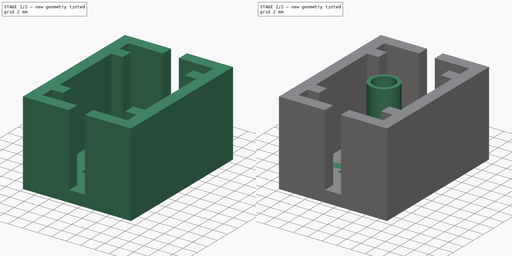
[diagram: build sequence overview — one tinted view per stage of 2, left to right]
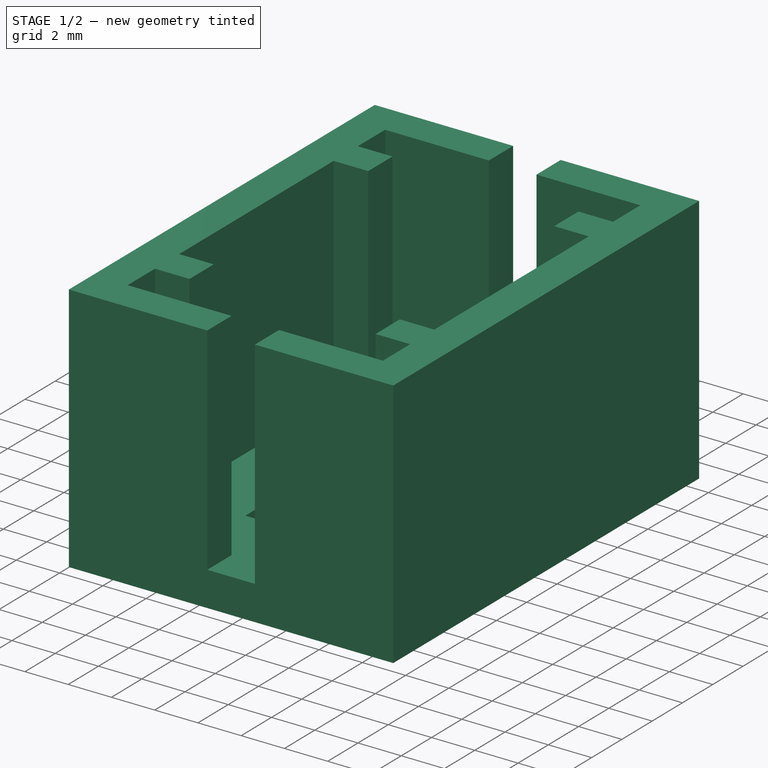
[diagram: stage 1 of 2 — iso view after this stage's code; geometry added in this stage tinted green]
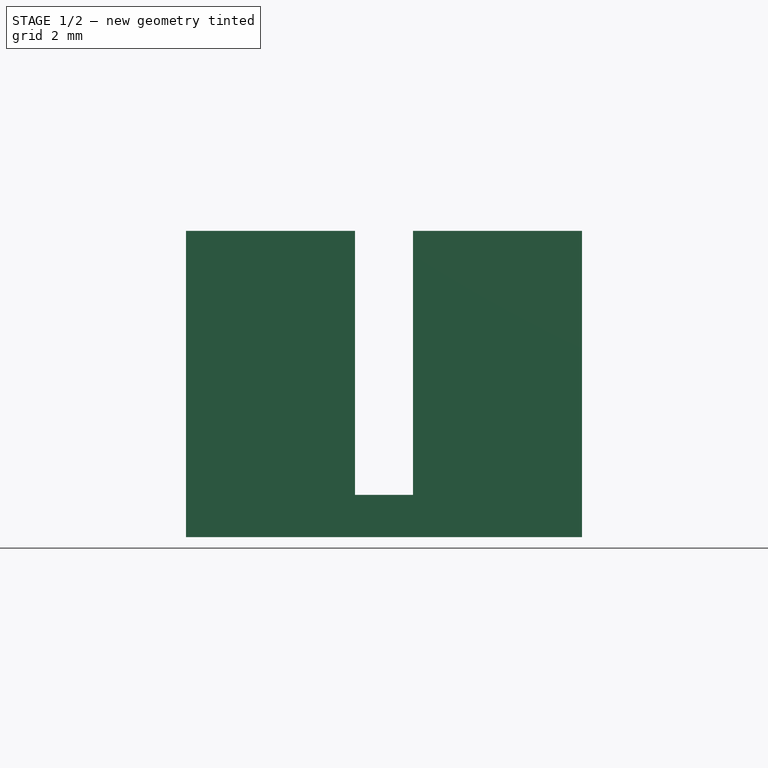
[diagram: stage 1 of 2 — front view after this stage's code; geometry added in this stage tinted green]
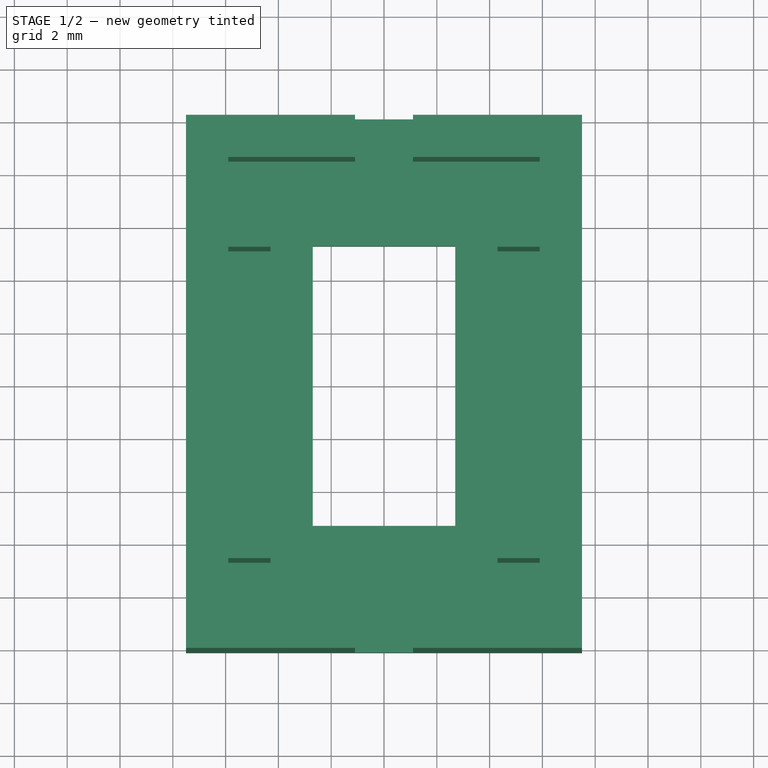
[diagram: stage 1 of 2 — top view after this stage's code; geometry added in this stage tinted green]
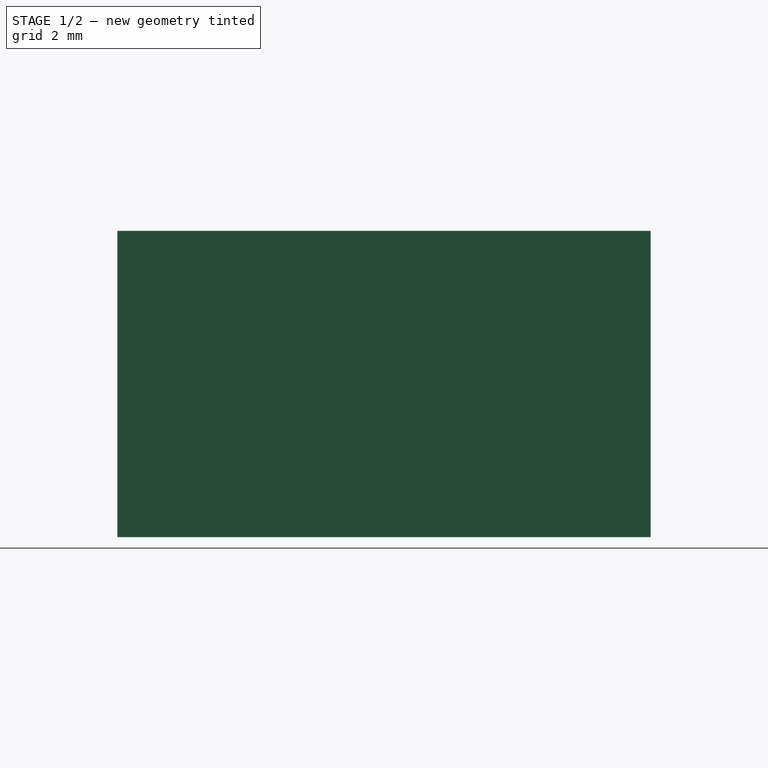
[diagram: stage 1 of 2 — right view after this stage's code; geometry added in this stage tinted green]
FCSTD DOCUMENT  (FreeCAD 1.0R39319 (Git))
Label: tube_test
License: All rights reserved
LicenseURL: http://en.wikipedia.org/wiki/All_rights_reserved
objects: Sketcher::SketchObject×4, PartDesign::Pad×4, PartDesign::Body×2
note: 22 computed .brp shape members not serialized (recipe doc carries the construction recipe); baked Part::Feature solids carry a one-line shape summary decoded from their .brp

FEATURE [Sketcher::SketchObject] Sketch
  ArcFitTolerance = 1e-06
  AttachmentSupport = -> [XY_Plane]
  FullyConstrained = true
  MakeInternals = false
  MapMode = 5
  sketch-geometry (10):
    g0: LineSegment StartX=-7.5 StartY=-10.1 StartZ=0 EndX=7.5 EndY=-10.1 EndZ=0
    g1: LineSegment StartX=7.5 StartY=-10.1 StartZ=0 EndX=7.5 EndY=10.1 EndZ=0
    g2: LineSegment StartX=7.5 StartY=10.1 StartZ=0 EndX=-7.5 EndY=10.1 EndZ=0
    g3: LineSegment StartX=-7.5 StartY=10.1 StartZ=0 EndX=-7.5 EndY=-10.1 EndZ=0
    g4: GeomPoint [constr] X=0 Y=0 Z=0
    g5: LineSegment StartX=-2.7 StartY=5.3 StartZ=0 EndX=-2.7 EndY=-5.3 EndZ=0
    g6: LineSegment StartX=-2.7 StartY=-5.3 StartZ=0 EndX=2.7 EndY=-5.3 EndZ=0
    g7: LineSegment StartX=2.7 StartY=-5.3 StartZ=0 EndX=2.7 EndY=5.3 EndZ=0
    g8: LineSegment StartX=2.7 StartY=5.3 StartZ=0 EndX=-2.7 EndY=5.3 EndZ=0
    g9: GeomPoint [constr] X=0 Y=0 Z=0
  constraints (24):
    c: Coincident(g0,g1)
    c: Coincident(g1,g2)
    c: Coincident(g2,g3)
    c: Coincident(g3,g0)
    c: Horizontal(g0)
    c: Horizontal(g2)
    c: Vertical(g1)
    c: Vertical(g3)
    c: Symmetric(g2,g0,g4)
    c: Distance(g1,g3) = 15
    c: Distance(g0,g2) = 20.2
    c: Coincident(g4,g-1)
    c: Coincident(g5,g6)
    c: Coincident(g6,g7)
    c: Coincident(g7,g8)
    c: Coincident(g8,g5)
    c: Vertical(g5)
    c: Vertical(g7)
    c: Horizontal(g6)
    c: Horizontal(g8)
    c: Symmetric(g7,g5,g9)
    c: Coincident(g9,g4)
    c: Distance(g8,g2) = 4.8
    c: Distance(g1,g7) = 4.8
FEATURE [PartDesign::Pad] Pad
  Direction = (0,0,1)
  Length = 1.6
  Length2 = 10
  Profile = -> Sketch
  ReferenceAxis = -> Sketch [N_Axis]
  Refine = true
  Suppressed = false
  Type = 0
FEATURE [PartDesign::Body] Body001
  AllowCompound = false
  Group = -> [Sketch002,Pad002,Sketch003,Pad003]
  Origin = -> Origin001
  Tip = -> Pad003
FEATURE [Sketcher::SketchObject] Sketch004
  ArcFitTolerance = 1e-06
  AttachmentSupport = -> [Pad]
  ExternalGeometry = -> [Pad]
  FullyConstrained = true
  MakeInternals = false
  MapMode = 5
  Placement = pos=(0,0,1.6) rot=(0,0,1;0rad)
  sketch-geometry (40):
    g0: LineSegment StartX=-7.5 StartY=10.1 StartZ=0 EndX=-7.5 EndY=-10.1 EndZ=0
    g1: LineSegment StartX=-7.5 StartY=-10.1 StartZ=0 EndX=-5.9 EndY=-10.1 EndZ=0
    g2: LineSegment StartX=-5.9 StartY=-10.1 StartZ=0 EndX=-5.9 EndY=10.1 EndZ=0
    g3: LineSegment StartX=-5.9 StartY=10.1 StartZ=0 EndX=-7.5 EndY=10.1 EndZ=0
    g4: LineSegment StartX=7.5 StartY=10.1 StartZ=0 EndX=5.9 EndY=10.1 EndZ=0
    g5: LineSegment StartX=5.9 StartY=10.1 StartZ=0 EndX=5.9 EndY=-10.1 EndZ=0
    g6: LineSegment StartX=5.9 StartY=-10.1 StartZ=0 EndX=7.5 EndY=-10.1 EndZ=0
    g7: LineSegment StartX=7.5 StartY=-10.1 StartZ=0 EndX=7.5 EndY=10.1 EndZ=0
    g8: LineSegment StartX=-5.9 StartY=-10.1 StartZ=0 EndX=-1.1 EndY=-10.1 EndZ=0
    g9: LineSegment StartX=-1.1 StartY=-10.1 StartZ=0 EndX=-1.1 EndY=-8.5 EndZ=0
    g10: LineSegment StartX=-1.1 StartY=-8.5 StartZ=0 EndX=-5.9 EndY=-8.5 EndZ=0
    g11: LineSegment StartX=-5.9 StartY=-8.5 StartZ=0 EndX=-5.9 EndY=-10.1 EndZ=0
    g12: LineSegment StartX=5.9 StartY=-10.1 StartZ=0 EndX=5.9 EndY=-8.5 EndZ=0
    g13: LineSegment StartX=5.9 StartY=-8.5 StartZ=0 EndX=1.1 EndY=-8.5 EndZ=0
    g14: LineSegment StartX=1.1 StartY=-8.5 StartZ=0 EndX=1.1 EndY=-10.1 EndZ=0
    g15: LineSegment StartX=1.1 StartY=-10.1 StartZ=0 EndX=5.9 EndY=-10.1 EndZ=0
    g16: LineSegment StartX=-5.9 StartY=10.1 StartZ=0 EndX=-5.9 EndY=8.5 EndZ=0
    g17: LineSegment StartX=-5.9 StartY=8.5 StartZ=0 EndX=-1.1 EndY=8.5 EndZ=0
    g18: LineSegment StartX=-1.1 StartY=8.5 StartZ=0 EndX=-1.1 EndY=10.1 EndZ=0
    g19: LineSegment StartX=-1.1 StartY=10.1 StartZ=0 EndX=-5.9 EndY=10.1 EndZ=0
    g20: LineSegment StartX=5.9 StartY=10.1 StartZ=0 EndX=1.1 EndY=10.1 EndZ=0
    g21: LineSegment StartX=1.1 StartY=10.1 StartZ=0 EndX=1.1 EndY=8.5 EndZ=0
    g22: LineSegment StartX=1.1 StartY=8.5 StartZ=0 EndX=5.9 EndY=8.5 EndZ=0
    g23: LineSegment StartX=5.9 StartY=8.5 StartZ=0 EndX=5.9 EndY=10.1 EndZ=0
    g24: LineSegment StartX=-5.9 StartY=5.1 StartZ=0 EndX=-4.3 EndY=5.1 EndZ=0
    g25: LineSegment StartX=-4.3 StartY=5.1 StartZ=0 EndX=-4.3 EndY=6.7 EndZ=0
    g26: LineSegment StartX=-4.3 StartY=6.7 StartZ=0 EndX=-5.9 EndY=6.7 EndZ=0
    g27: LineSegment StartX=-5.9 StartY=6.7 StartZ=0 EndX=-5.9 EndY=5.1 EndZ=0
    g28: LineSegment StartX=5.9 StartY=5.1 StartZ=0 EndX=5.9 EndY=6.7 EndZ=0
    g29: LineSegment StartX=5.9 StartY=6.7 StartZ=0 EndX=4.3 EndY=6.7 EndZ=0
    g30: LineSegment StartX=4.3 StartY=6.7 StartZ=0 EndX=4.3 EndY=5.1 EndZ=0
    g31: LineSegment StartX=4.3 StartY=5.1 StartZ=0 EndX=5.9 EndY=5.1 EndZ=0
    g32: LineSegment StartX=-5.9 StartY=-5.1 StartZ=0 EndX=-5.9 EndY=-6.7 EndZ=0
    g33: LineSegment StartX=-5.9 StartY=-6.7 StartZ=0 EndX=-4.3 EndY=-6.7 EndZ=0
    g34: LineSegment StartX=-4.3 StartY=-6.7 StartZ=0 EndX=-4.3 EndY=-5.1 EndZ=0
    g35: LineSegment StartX=-4.3 StartY=-5.1 StartZ=0 EndX=-5.9 EndY=-5.1 EndZ=0
    g36: LineSegment StartX=5.9 StartY=-5.1 StartZ=0 EndX=4.3 EndY=-5.1 EndZ=0
    g37: LineSegment StartX=4.3 StartY=-5.1 StartZ=0 EndX=4.3 EndY=-6.7 EndZ=0
    g38: LineSegment StartX=4.3 StartY=-6.7 StartZ=0 EndX=5.9 EndY=-6.7 EndZ=0
    g39: LineSegment StartX=5.9 StartY=-6.7 StartZ=0 EndX=5.9 EndY=-5.1 EndZ=0
  constraints (114):
    c: Coincident(g0,g1)
    c: Coincident(g1,g2)
    c: Coincident(g2,g3)
    c: Coincident(g3,g0)
    c: Vertical(g0)
    c: Vertical(g2)
    c: Horizontal(g1)
    c: Horizontal(g3)
    c: Distance(g0,g2) = 1.6
    c: Coincident(g0,g-5)
    c: PointOnObject(g1,g-6)
    c: Coincident(g4,g5)
    c: Coincident(g5,g6)
    c: Coincident(g6,g7)
    c: Coincident(g7,g4)
    c: Horizontal(g4)
    c: Horizontal(g6)
    c: Vertical(g5)
    c: Vertical(g7)
    c: Distance(g5,g7) = 1.6
    c: Coincident(g4,g-4)
    c: PointOnObject(g5,g-6)
    c: Coincident(g8,g9)
    c: Coincident(g9,g10)
    c: Coincident(g10,g11)
    c: Coincident(g11,g8)
    c: Horizontal(g8)
    c: Horizontal(g10)
    c: Vertical(g9)
    c: Vertical(g11)
    c: Distance(g9,g11) = 4.8
    c: Distance(g8,g10) = 1.6
    c: Coincident(g8,g1)
    c: Coincident(g12,g13)
    c: Coincident(g13,g14)
    c: Coincident(g14,g15)
    c: Coincident(g15,g12)
    c: Vertical(g12)
    c: Vertical(g14)
    c: Horizontal(g13)
    c: Horizontal(g15)
    c: Distance(g12,g14) = 4.8
    c: Distance(g13,g15) = 1.6
    c: Coincident(g12,g5)
    c: Coincident(g16,g17)
    c: Coincident(g17,g18)
    c: Coincident(g18,g19)
    c: Coincident(g19,g16)
    c: Vertical(g16)
    c: Vertical(g18)
    c: Horizontal(g17)
    c: Horizontal(g19)
    c: Distance(g16,g18) = 4.8
    c: Distance(g17,g19) = 1.6
    c: Coincident(g16,g2)
    c: Coincident(g20,g21)
    c: Coincident(g21,g22)
    c: Coincident(g22,g23)
    c: Coincident(g23,g20)
    c: Horizontal(g20)
    c: Horizontal(g22)
    c: Vertical(g21)
    c: Vertical(g23)
    c: Distance(g21,g23) = 4.8
    c: Distance(g20,g22) = 1.6
    c: Coincident(g20,g4)
    c: Coincident(g24,g25)
    c: Coincident(g25,g26)
    c: Coincident(g26,g27)
    c: Coincident(g27,g24)
    c: Horizontal(g24)
    c: Horizontal(g26)
    c: Vertical(g25)
    c: Vertical(g27)
    c: Distance(g25,g27) = 1.6
    c: Distance(g24,g26) = 1.6
    c: PointOnObject(g24,g2)
    c: Coincident(g28,g29)
    c: Coincident(g29,g30)
    c: Coincident(g30,g31)
    c: Coincident(g31,g28)
    c: Vertical(g28)
    c: Vertical(g30)
    c: Horizontal(g29)
    c: Horizontal(g31)
    c: Distance(g28,g30) = 1.6
    c: Distance(g29,g31) = 1.6
    c: PointOnObject(g28,g5)
    c: Coincident(g32,g33)
    c: Coincident(g33,g34)
    c: Coincident(g34,g35)
    c: Coincident(g35,g32)
    c: Vertical(g32)
    c: Vertical(g34)
    c: Horizontal(g33)
    c: Horizontal(g35)
    c: Distance(g32,g34) = 1.6
    c: Distance(g33,g35) = 1.6
    c: PointOnObject(g32,g2)
    c: Coincident(g36,g37)
    c: Coincident(g37,g38)
    c: Coincident(g38,g39)
    c: Coincident(g39,g36)
    c: Horizontal(g36)
    c: Horizontal(g38)
    c: Vertical(g37)
    c: Vertical(g39)
    c: Distance(g37,g39) = 1.6
    c: Distance(g36,g38) = 1.6
    c: PointOnObject(g36,g5)
    c: Distance(g33,g10) = 1.8
    c: Distance(g13,g38) = 1.8
    c: Distance(g26,g17) = 1.8
    c: Distance(g29,g22) = 1.8
FEATURE [PartDesign::Pad] Pad004
  BaseFeature = -> Pad
  Direction = (0,0,1)
  Length = 10
  Length2 = 10
  Profile = -> Sketch004
  ReferenceAxis = -> Sketch004 [N_Axis]
  Refine = true
  Suppressed = false
  Type = 0
FEATURE [PartDesign::Body] Body
  AllowCompound = false
  Group = -> [Sketch,Pad,Sketch004,Pad004]
  Origin = -> Origin
  Tip = -> Pad004
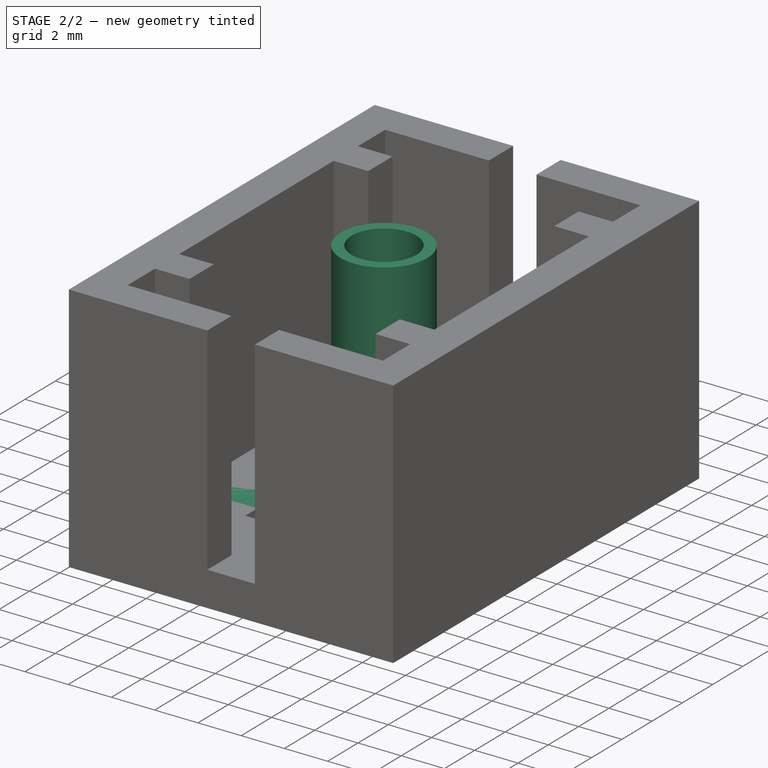
[diagram: stage 2 of 2 — iso view after this stage's code; geometry added in this stage tinted green]
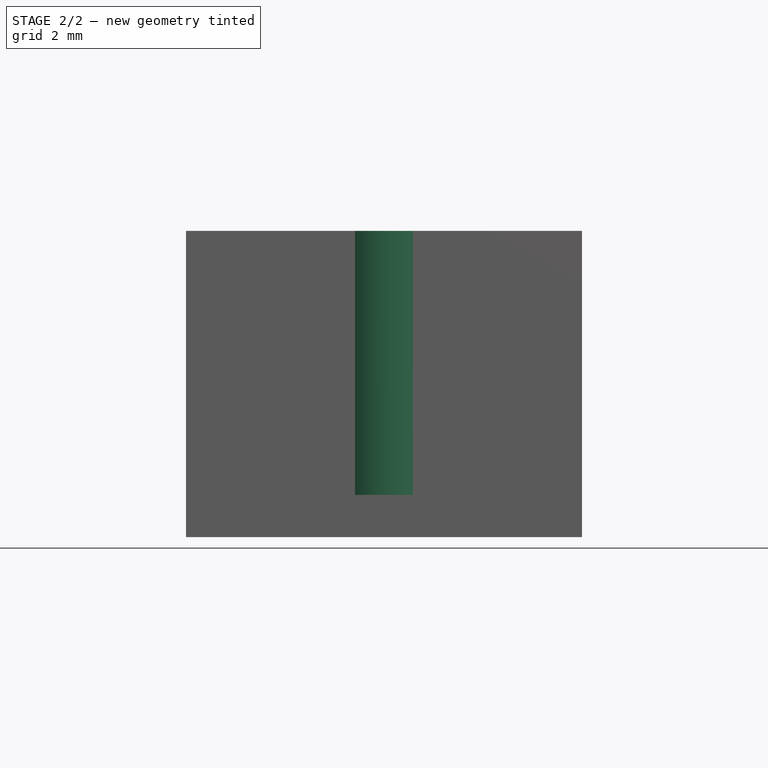
[diagram: stage 2 of 2 — front view after this stage's code; geometry added in this stage tinted green]
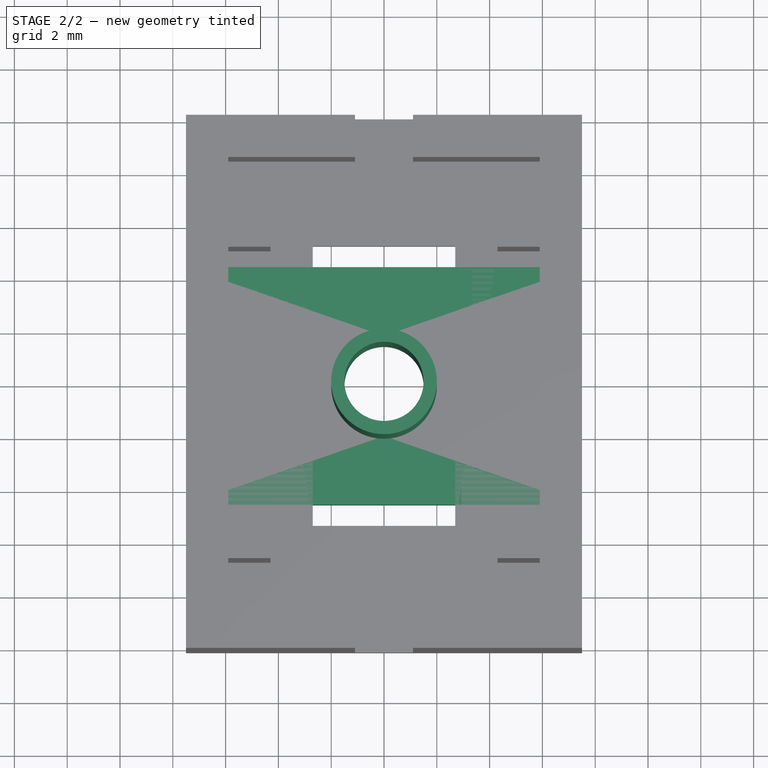
[diagram: stage 2 of 2 — top view after this stage's code; geometry added in this stage tinted green]
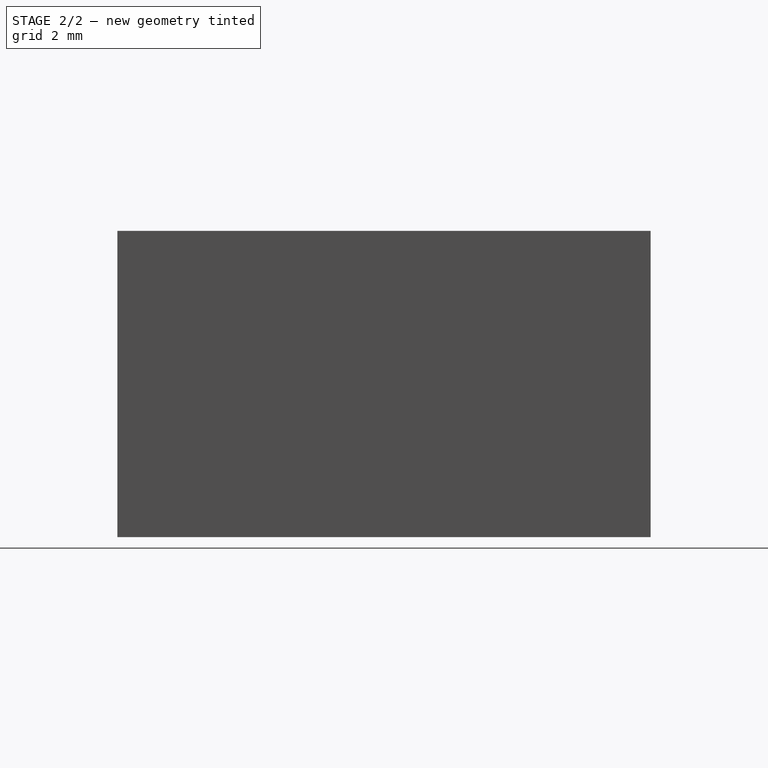
[diagram: stage 2 of 2 — right view after this stage's code; geometry added in this stage tinted green]
FEATURE [Sketcher::SketchObject] Sketch002
  ArcFitTolerance = 1e-06
  AttachmentSupport = -> [XY_Plane001]
  FullyConstrained = true
  MakeInternals = false
  MapMode = 5
  sketch-geometry (6):
    g0: LineSegment StartX=-7.5 StartY=-4.5 StartZ=0 EndX=7.5 EndY=-4.5 EndZ=0
    g1: LineSegment StartX=7.5 StartY=-4.5 StartZ=0 EndX=7.5 EndY=4.5 EndZ=0
    g2: LineSegment StartX=7.5 StartY=4.5 StartZ=0 EndX=-7.5 EndY=4.5 EndZ=0
    g3: LineSegment StartX=-7.5 StartY=4.5 StartZ=0 EndX=-7.5 EndY=-4.5 EndZ=0
    g4: GeomPoint [constr] X=0 Y=-2e-16 Z=0
    g5: Circle CenterX=0 CenterY=-2e-16 CenterZ=0 NormalX=0 NormalY=0 NormalZ=1 AngleXU=0 Radius=1.5
  constraints (14):
    c: Coincident(g0,g1)
    c: Coincident(g1,g2)
    c: Coincident(g2,g3)
    c: Coincident(g3,g0)
    c: Horizontal(g0)
    c: Horizontal(g2)
    c: Vertical(g1)
    c: Vertical(g3)
    c: Symmetric(g2,g0,g4)
    c: Distance(g1,g3) = 15
    c: Distance(g0,g2) = 9
    c: Coincident(g4,g-1)
    c: Diameter(g5) = 3
    c: Coincident(g5,g4)
FEATURE [PartDesign::Pad] Pad002
  Direction = (0,0,1)
  Length = 1.6
  Length2 = 10
  Profile = -> Sketch002
  ReferenceAxis = -> Sketch002 [N_Axis]
  Refine = true
  Suppressed = false
  Type = 0
FEATURE [Sketcher::SketchObject] Sketch003
  ArcFitTolerance = 1e-06
  AttachmentSupport = -> [Pad002]
  ExternalGeometry = -> [Pad002]
  FullyConstrained = true
  MakeInternals = false
  MapMode = 5
  Placement = pos=(0,0,1.6) rot=(0,0,1;0rad)
  sketch-geometry (2):
    g0: Circle CenterX=0 CenterY=0 CenterZ=0 NormalX=0 NormalY=0 NormalZ=1 AngleXU=0 Radius=1.5
    g1: Circle CenterX=0 CenterY=0 CenterZ=0 NormalX=0 NormalY=0 NormalZ=1 AngleXU=0 Radius=2
  constraints (4):
    c: Diameter(g0) = 3
    c: Coincident(g0,g-1)
    c: Diameter(g1) = 4
    c: Coincident(g1,g0)
FEATURE [PartDesign::Pad] Pad003
  BaseFeature = -> Pad002
  Direction = (0,0,1)
  Length = 10
  Length2 = 10
  Profile = -> Sketch003
  ReferenceAxis = -> Sketch003 [N_Axis]
  Refine = true
  Suppressed = false
  Type = 0
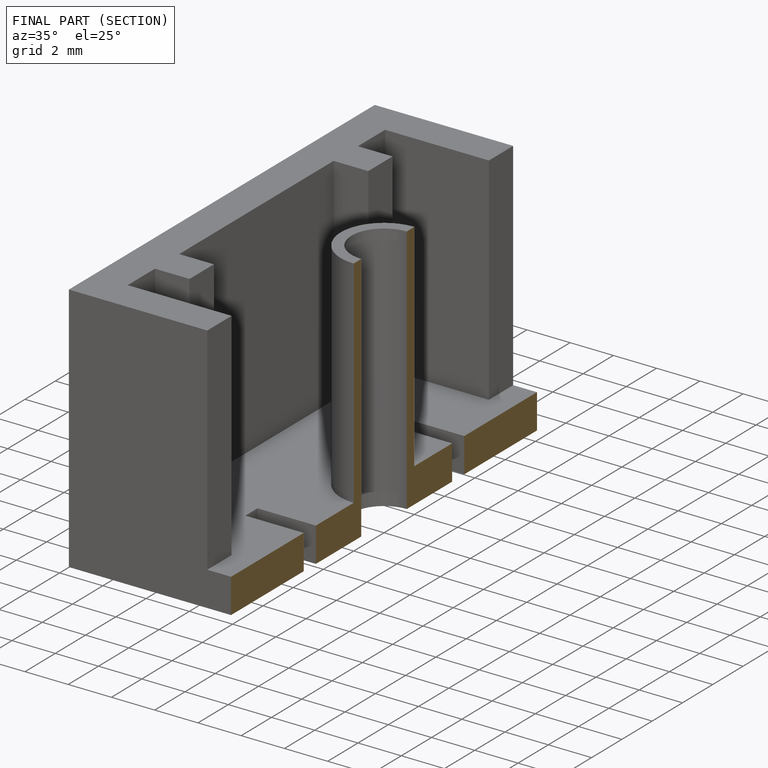
[diagram: finished part — half-section view (interior)]
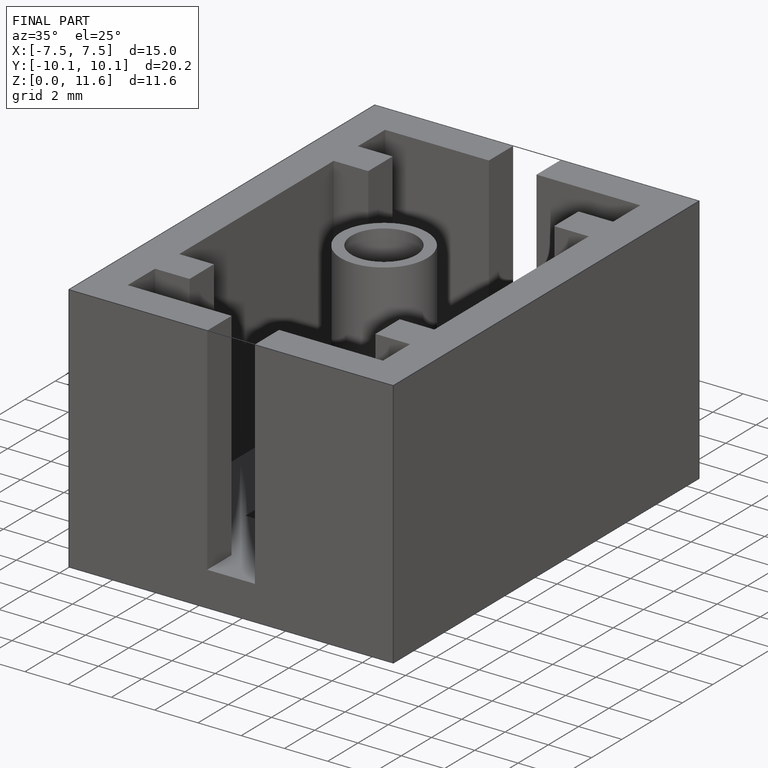
[diagram: finished part — iso view with bounding-box wireframe]
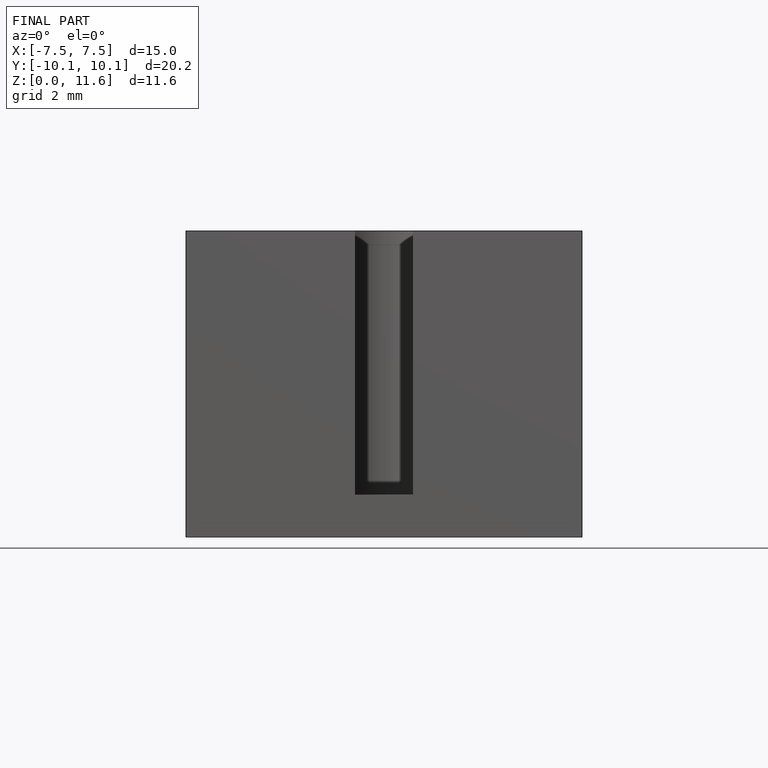
[diagram: finished part — front view with bounding-box wireframe]
